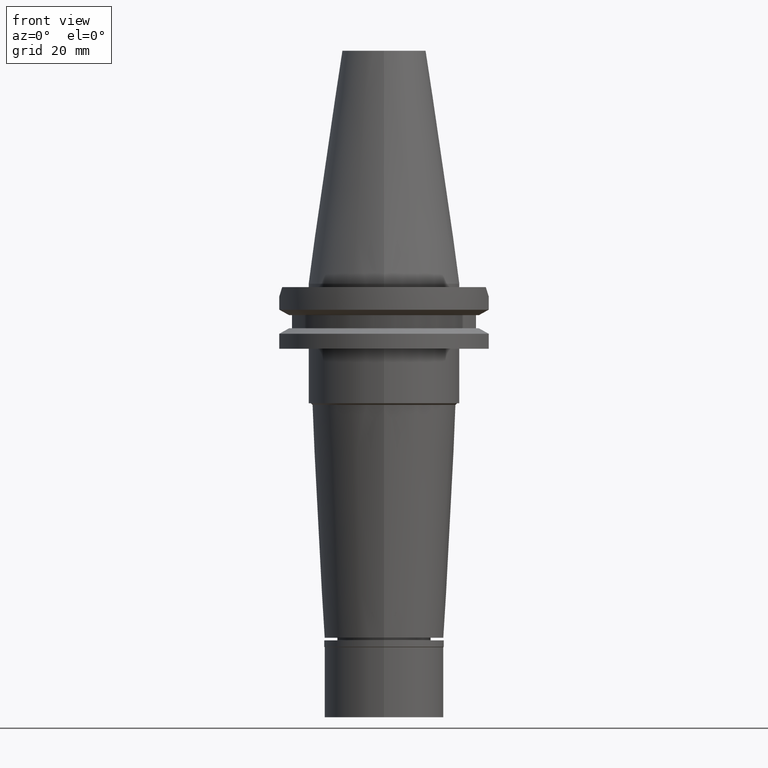
[diagram: clean part render]
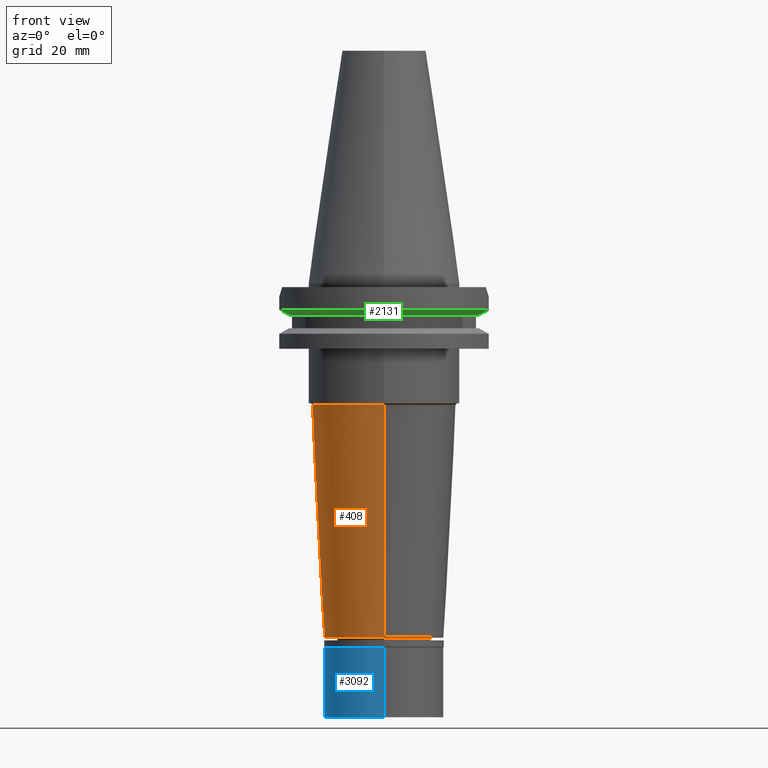
[diagram: same view with three faces highlighted in distinct colors, each labeled with its STEP entity id]
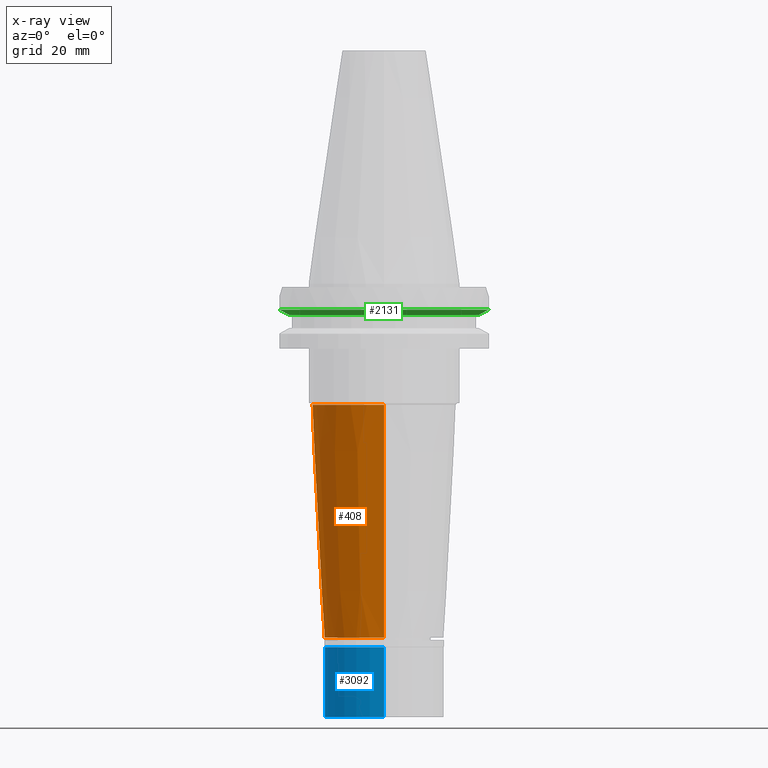
[diagram: x-ray of the same camera — body ghosted, the three highlighted faces saturated]
A machine part, front view with three faces highlighted in distinct colors.
The next image is the same camera in x-ray (body ghosted, the three faces saturated) — at least one of them is partly hidden behind the body in this view.
Their STEP definitions:

[orange] entity #408 — the highlighted conical surface has half-angle 3 deg.
#116 = ORIENTED_EDGE ( 'NONE', *, *, #2410, .F. ) ;
#124 = CARTESIAN_POINT ( 'NONE',  ( 0.0000000000000000000, -17.50000000000000000, -103.7000000000000028 ) ) ;
#251 = CARTESIAN_POINT ( 'NONE',  ( 0.0000000000000000000, 17.50000000000000000, -103.7000000000000028 ) ) ;
#310 = DIRECTION ( 'NONE',  ( 0.0000000000000000000, 0.0000000000000000000, -1.000000000000000000 ) ) ;
#322 = ORIENTED_EDGE ( 'NONE', *, *, #861, .T. ) ;
#382 = FACE_OUTER_BOUND ( 'NONE', #3172, .T. ) ;
#397 = DIRECTION ( 'NONE',  ( 0.0000000000000000000, -0.05233595624291870890, -0.9986295347545751655 ) ) ;
#408 = ADVANCED_FACE ( 'NONE', ( #382 ), #414, .T. ) ;
#414 = CONICAL_SURFACE ( 'NONE', #899, 19.28710527355000082, 0.05235987755982005748 ) ;
#537 = CIRCLE ( 'NONE', #2438, 17.50000000000000000 ) ;
#861 = EDGE_CURVE ( 'NONE', #1195, #2337, #1158, .T. ) ;
#899 = AXIS2_PLACEMENT_3D ( 'NONE', #2995, #1441, #1732 ) ;
#1154 = VERTEX_POINT ( 'NONE', #2858 ) ;
#1158 = LINE ( 'NONE', #2210, #2741 ) ;
#1164 = CIRCLE ( 'NONE', #1828, 21.07421054710000163 ) ;
#1195 = VERTEX_POINT ( 'NONE', #2892 ) ;
#1249 = DIRECTION ( 'NONE',  ( 0.0000000000000000000, 0.0000000000000000000, 1.000000000000000000 ) ) ;
#1293 = EDGE_CURVE ( 'NONE', #1154, #1195, #1164, .T. ) ;
#1353 = ORIENTED_EDGE ( 'NONE', *, *, #2600, .T. ) ;
#1441 = DIRECTION ( 'NONE',  ( 0.0000000000000000000, 0.0000000000000000000, 1.000000000000000000 ) ) ;
#1442 = VERTEX_POINT ( 'NONE', #124 ) ;
#1446 = LINE ( 'NONE', #1704, #2272 ) ;
#1535 = DIRECTION ( 'NONE',  ( 0.0000000000000000000, 1.000000000000000000, 0.0000000000000000000 ) ) ;
#1571 = CARTESIAN_POINT ( 'NONE',  ( 0.0000000000000000000, 0.0000000000000000000, -103.7000000000000028 ) ) ;
#1704 = CARTESIAN_POINT ( 'NONE',  ( 0.0000000000000000000, -21.07421054710000163, -35.50000000000000000 ) ) ;
#1732 = DIRECTION ( 'NONE',  ( 0.0000000000000000000, 1.000000000000000000, 0.0000000000000000000 ) ) ;
#1828 = AXIS2_PLACEMENT_3D ( 'NONE', #2636, #310, #2924 ) ;
#2210 = CARTESIAN_POINT ( 'NONE',  ( 0.0000000000000000000, 21.07421054710000163, -35.50000000000000000 ) ) ;
#2272 = VECTOR ( 'NONE', #2998, 1000.000000000000227 ) ;
#2309 = ORIENTED_EDGE ( 'NONE', *, *, #1293, .T. ) ;
#2337 = VERTEX_POINT ( 'NONE', #251 ) ;
#2410 = EDGE_CURVE ( 'NONE', #1154, #1442, #1446, .T. ) ;
#2438 = AXIS2_PLACEMENT_3D ( 'NONE', #1571, #1249, #1535 ) ;
#2600 = EDGE_CURVE ( 'NONE', #2337, #1442, #537, .T. ) ;
#2636 = CARTESIAN_POINT ( 'NONE',  ( 0.0000000000000000000, 0.0000000000000000000, -35.50000000000000000 ) ) ;
#2741 = VECTOR ( 'NONE', #397, 1000.000000000000227 ) ;
#2858 = CARTESIAN_POINT ( 'NONE',  ( 0.0000000000000000000, -21.07421054710000163, -35.50000000000000000 ) ) ;
#2892 = CARTESIAN_POINT ( 'NONE',  ( 0.0000000000000000000, 21.07421054710000163, -35.50000000000000000 ) ) ;
#2924 = DIRECTION ( 'NONE',  ( 0.0000000000000000000, -1.000000000000000000, 0.0000000000000000000 ) ) ;
#2995 = CARTESIAN_POINT ( 'NONE',  ( 0.0000000000000000000, 0.0000000000000000000, -69.59999999999999432 ) ) ;
#2998 = DIRECTION ( 'NONE',  ( 0.0000000000000000000, 0.05233595624291870890, -0.9986295347545751655 ) ) ;
#3172 = EDGE_LOOP ( 'NONE', ( #1353, #116, #2309, #322 ) ) ;

[blue] entity #3092 — the highlighted cylindrical surface (partial cylindrical patch) has radius 17.5 mm, axis along (0, 0, -1).
#41 = CARTESIAN_POINT ( 'NONE',  ( 0.0000000000000000000, 17.50000000000000000, -22.50000000000000000 ) ) ;
#115 = VERTEX_POINT ( 'NONE', #1082 ) ;
#197 = ORIENTED_EDGE ( 'NONE', *, *, #247, .T. ) ;
#200 = VECTOR ( 'NONE', #2821, 1000.000000000000000 ) ;
#247 = EDGE_CURVE ( 'NONE', #2704, #115, #1006, .T. ) ;
#277 = ORIENTED_EDGE ( 'NONE', *, *, #802, .T. ) ;
#347 = LINE ( 'NONE', #2656, #791 ) ;
#446 = DIRECTION ( 'NONE',  ( 0.0000000000000000000, 0.0000000000000000000, 1.000000000000000000 ) ) ;
#449 = VERTEX_POINT ( 'NONE', #1515 ) ;
#462 = FACE_OUTER_BOUND ( 'NONE', #928, .T. ) ;
#748 = DIRECTION ( 'NONE',  ( 0.0000000000000000000, 0.0000000000000000000, -1.000000000000000000 ) ) ;
#757 = VERTEX_POINT ( 'NONE', #41 ) ;
#791 = VECTOR ( 'NONE', #1667, 1000.000000000000000 ) ;
#802 = EDGE_CURVE ( 'NONE', #115, #757, #347, .T. ) ;
#928 = EDGE_LOOP ( 'NONE', ( #1221, #2416, #197, #277 ) ) ;
#1006 = CIRCLE ( 'NONE', #2329, 17.50000000000000000 ) ;
#1082 = CARTESIAN_POINT ( 'NONE',  ( 0.0000000000000000000, 17.50000000000000000, -2.000000000000000000 ) ) ;
#1197 = CARTESIAN_POINT ( 'NONE',  ( 0.0000000000000000000, 0.0000000000000000000, -2.000000000000000000 ) ) ;
#1221 = ORIENTED_EDGE ( 'NONE', *, *, #3111, .T. ) ;
#1289 = DIRECTION ( 'NONE',  ( 0.0000000000000000000, -1.000000000000000000, 0.0000000000000000000 ) ) ;
#1473 = LINE ( 'NONE', #1787, #200 ) ;
#1474 = DIRECTION ( 'NONE',  ( 0.0000000000000000000, 1.000000000000000000, 0.0000000000000000000 ) ) ;
#1494 = CARTESIAN_POINT ( 'NONE',  ( 0.0000000000000000000, -17.50000000000000000, -2.000000000000000000 ) ) ;
#1515 = CARTESIAN_POINT ( 'NONE',  ( 0.0000000000000000000, -17.50000000000000000, -22.50000000000000000 ) ) ;
#1520 = CIRCLE ( 'NONE', #1680, 17.50000000000000000 ) ;
#1549 = CYLINDRICAL_SURFACE ( 'NONE', #3302, 17.50000000000000000 ) ;
#1657 = EDGE_CURVE ( 'NONE', #2704, #449, #1473, .T. ) ;
#1667 = DIRECTION ( 'NONE',  ( 0.0000000000000000000, 0.0000000000000000000, -1.000000000000000000 ) ) ;
#1680 = AXIS2_PLACEMENT_3D ( 'NONE', #2340, #446, #1474 ) ;
#1787 = CARTESIAN_POINT ( 'NONE',  ( 0.0000000000000000000, -17.50000000000000000, -2.000000000000000000 ) ) ;
#2240 = DIRECTION ( 'NONE',  ( 0.0000000000000000000, 0.0000000000000000000, -1.000000000000000000 ) ) ;
#2329 = AXIS2_PLACEMENT_3D ( 'NONE', #1197, #2240, #1289 ) ;
#2340 = CARTESIAN_POINT ( 'NONE',  ( 0.0000000000000000000, 0.0000000000000000000, -22.50000000000000000 ) ) ;
#2416 = ORIENTED_EDGE ( 'NONE', *, *, #1657, .F. ) ;
#2656 = CARTESIAN_POINT ( 'NONE',  ( 0.0000000000000000000, 17.50000000000000000, -2.000000000000000000 ) ) ;
#2704 = VERTEX_POINT ( 'NONE', #1494 ) ;
#2821 = DIRECTION ( 'NONE',  ( 0.0000000000000000000, 0.0000000000000000000, -1.000000000000000000 ) ) ;
#2822 = CARTESIAN_POINT ( 'NONE',  ( 0.0000000000000000000, 0.0000000000000000000, 0.0000000000000000000 ) ) ;
#3055 = DIRECTION ( 'NONE',  ( 0.0000000000000000000, -1.000000000000000000, 0.0000000000000000000 ) ) ;
#3092 = ADVANCED_FACE ( 'NONE', ( #462 ), #1549, .T. ) ;
#3111 = EDGE_CURVE ( 'NONE', #757, #449, #1520, .T. ) ;
#3302 = AXIS2_PLACEMENT_3D ( 'NONE', #2822, #748, #3055 ) ;

[green] entity #2131 — the highlighted conical surface has half-angle 60 deg.
#65 = ORIENTED_EDGE ( 'NONE', *, *, #1594, .T. ) ;
#203 = AXIS2_PLACEMENT_3D ( 'NONE', #1579, #2602, #270 ) ;
#266 = CONICAL_SURFACE ( 'NONE', #3186, 30.36276877526999840, 1.047197551196400456 ) ;
#270 = DIRECTION ( 'NONE',  ( -0.9661575315241073270, -0.2579527559055020958, 0.0000000000000000000 ) ) ;
#275 = CARTESIAN_POINT ( 'NONE',  ( 27.79398348535999830, -8.190000189139000852, -9.210000000000999165 ) ) ;
#324 = CARTESIAN_POINT ( 'NONE',  ( -27.79399588425999568, -8.189999365901998729, -9.210000000000999165 ) ) ;
#363 = VERTEX_POINT ( 'NONE', #2193 ) ;
#457 = DIRECTION ( 'NONE',  ( 0.0000000000000000000, 0.0000000000000000000, 1.000000000000000000 ) ) ;
#938 = DIRECTION ( 'NONE',  ( -0.9592224574148938698, -0.2826522195046979880, 0.0000000000000000000 ) ) ;
#1304 = CARTESIAN_POINT ( 'NONE',  ( 30.67550146537999822, -8.190000601182999773, -7.608157985400000101 ) ) ;
#1366 = CARTESIAN_POINT ( 'NONE',  ( -28.71170969520537852, -8.189998730407220151, -8.701758252973064600 ) ) ;
#1392 = AXIS2_PLACEMENT_3D ( 'NONE', #2539, #2053, #938 ) ;
#1451 = CARTESIAN_POINT ( 'NONE',  ( 0.0000000000000000000, 1.121665249527999917E-14, -8.409081678974001051 ) ) ;
#1502 = CIRCLE ( 'NONE', #1392, 28.97553755052999946 ) ;
#1565 = CARTESIAN_POINT ( 'NONE',  ( -30.67550165918999738, -8.189999875294001086, -7.608164472371999665 ) ) ;
#1579 = CARTESIAN_POINT ( 'NONE',  ( 0.0000000000000000000, 1.121665249527999917E-14, -7.608163357944999206 ) ) ;
#1594 = EDGE_CURVE ( 'NONE', #1785, #3272, #1502, .T. ) ;
#1673 = CIRCLE ( 'NONE', #203, 31.74999999999998579 ) ;
#1785 = VERTEX_POINT ( 'NONE', #2398 ) ;
#1848 = CARTESIAN_POINT ( 'NONE',  ( -29.67220411609762110, -8.189999750681012713, -8.167814094851282292 ) ) ;
#1991 = FACE_OUTER_BOUND ( 'NONE', #2163, .T. ) ;
#2021 = CARTESIAN_POINT ( 'NONE',  ( 29.67220489865164978, -8.190001201932860297, -8.167813438664357051 ) ) ;
#2053 = DIRECTION ( 'NONE',  ( 0.0000000000000000000, 0.0000000000000000000, 1.000000000000000000 ) ) ;
#2059 = CARTESIAN_POINT ( 'NONE',  ( 28.71170641925096234, -8.190000378706761452, -8.701759820430906345 ) ) ;
#2131 = ADVANCED_FACE ( 'NONE', ( #1991 ), #266, .T. ) ;
#2163 = EDGE_LOOP ( 'NONE', ( #3026, #3062, #2402, #65 ) ) ;
#2193 = CARTESIAN_POINT ( 'NONE',  ( 30.67550146537999822, -8.190000601182999773, -7.608157985400000101 ) ) ;
#2222 = EDGE_CURVE ( 'NONE', #2968, #363, #1673, .T. ) ;
#2250 = B_SPLINE_CURVE_WITH_KNOTS ( 'NONE', 3,
 ( #1565, #1848, #1366, #324 ),
 .UNSPECIFIED., .F., .F.,
 ( 4, 4 ),
 ( 0.0000000000000000000, 1.000000000000000000 ),
 .UNSPECIFIED. ) ;
#2398 = CARTESIAN_POINT ( 'NONE',  ( -27.79399588425999568, -8.189999365901998729, -9.210000000000999165 ) ) ;
#2402 = ORIENTED_EDGE ( 'NONE', *, *, #3230, .T. ) ;
#2539 = CARTESIAN_POINT ( 'NONE',  ( 0.0000000000000000000, 1.121665249527999917E-14, -9.210000000002999343 ) ) ;
#2602 = DIRECTION ( 'NONE',  ( 0.0000000000000000000, 0.0000000000000000000, 1.000000000000000000 ) ) ;
#2673 = EDGE_CURVE ( 'NONE', #3272, #363, #2984, .T. ) ;
#2700 = CARTESIAN_POINT ( 'NONE',  ( -30.67550165918999738, -8.189999875294001086, -7.608164472371999665 ) ) ;
#2968 = VERTEX_POINT ( 'NONE', #2700 ) ;
#2984 = B_SPLINE_CURVE_WITH_KNOTS ( 'NONE', 3,
 ( #3114, #2059, #2021, #1304 ),
 .UNSPECIFIED., .F., .F.,
 ( 4, 4 ),
 ( 0.0000000000000000000, 1.000000000000000000 ),
 .UNSPECIFIED. ) ;
#3026 = ORIENTED_EDGE ( 'NONE', *, *, #2673, .T. ) ;
#3062 = ORIENTED_EDGE ( 'NONE', *, *, #2222, .F. ) ;
#3087 = DIRECTION ( 'NONE',  ( 0.0000000000000000000, 1.000000000000000000, 0.0000000000000000000 ) ) ;
#3114 = CARTESIAN_POINT ( 'NONE',  ( 27.79398348535999830, -8.190000189139000852, -9.210000000000999165 ) ) ;
#3186 = AXIS2_PLACEMENT_3D ( 'NONE', #1451, #457, #3087 ) ;
#3230 = EDGE_CURVE ( 'NONE', #2968, #1785, #2250, .T. ) ;
#3272 = VERTEX_POINT ( 'NONE', #275 ) ;